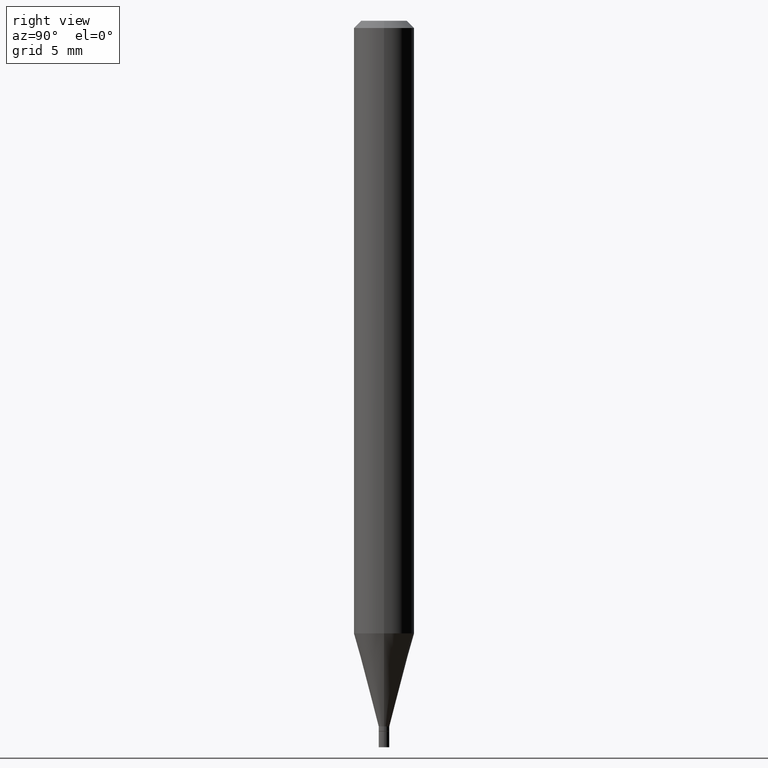
[diagram: clean part render]
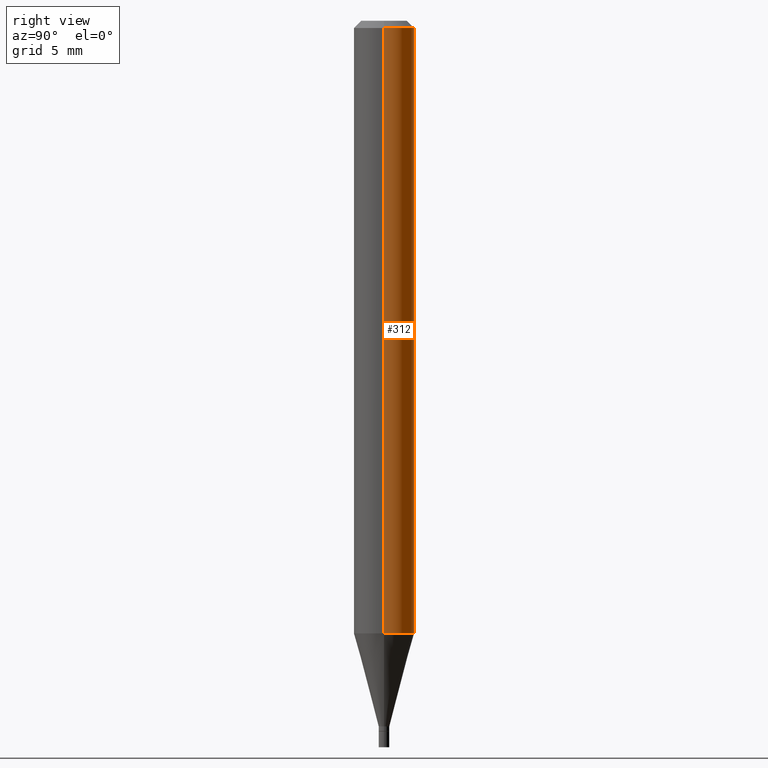
[diagram: same view with one face highlighted and labeled with its STEP entity id]
A machine part, right view. The second image highlights one B-rep face of the part: STEP entity #312.
In plain terms, the highlighted cylindrical surface (edge-blend (fillet) strip) has radius 1.5875 mm, axis along (-0, 0, 1).
Its self-contained STEP definition (entity closure, byte-faithful):
#22 = DIRECTION ( 'NONE',  ( -2.445468806185136877E-29, 3.491481338843145188E-15, 1.000000000000000000 ) ) ;
#24 = ORIENTED_EDGE ( 'NONE', *, *, #83, .F. ) ;
#32 = CARTESIAN_POINT ( 'NONE',  ( 3.093027438211846075E-29, -4.416023444557040885E-15, -1.264799383410203149 ) ) ;
#51 = EDGE_CURVE ( 'NONE', #365, #456, #251, .T. ) ;
#53 = CIRCLE ( 'NONE', #413, 0.06250000000000000000 ) ;
#60 = CARTESIAN_POINT ( 'NONE',  ( 0.06250000000000000000, -4.364351673553916694E-16, 3.047610484872459871E-30 ) ) ;
#68 = VERTEX_POINT ( 'NONE', #316 ) ;
#75 = CYLINDRICAL_SURFACE ( 'NONE', #356, 0.06250000000000000000 ) ;
#78 = VERTEX_POINT ( 'NONE', #460 ) ;
#83 = EDGE_CURVE ( 'NONE', #78, #68, #278, .T. ) ;
#93 = EDGE_CURVE ( 'NONE', #78, #365, #445, .T. ) ;
#100 = CARTESIAN_POINT ( 'NONE',  ( -0.06250000000000000000, 4.440892098500626162E-16, -3.074334431409316114E-30 ) ) ;
#123 = DIRECTION ( 'NONE',  ( 1.000000000000000000, -6.982962677686266711E-15, 4.876176775795935793E-29 ) ) ;
#139 = VECTOR ( 'NONE', #250, 39.37007874015748143 ) ;
#162 = CARTESIAN_POINT ( 'NONE',  ( -0.06250000000000000000, -3.971934234706977480E-15, -1.264799383410203149 ) ) ;
#198 = EDGE_CURVE ( 'NONE', #68, #456, #53, .T. ) ;
#217 = DIRECTION ( 'NONE',  ( 1.000000000000000000, -6.982962677686262766E-15, 0.000000000000000000 ) ) ;
#232 = ORIENTED_EDGE ( 'NONE', *, *, #51, .T. ) ;
#234 = EDGE_LOOP ( 'NONE', ( #369, #232, #292, #24 ) ) ;
#250 = DIRECTION ( 'NONE',  ( -2.445468806185136877E-29, 3.491481338843145188E-15, 1.000000000000000000 ) ) ;
#251 = LINE ( 'NONE', #100, #139 ) ;
#256 = DIRECTION ( 'NONE',  ( -2.445468806185136597E-29, 3.491481338843145583E-15, 1.000000000000000000 ) ) ;
#266 = FACE_OUTER_BOUND ( 'NONE', #234, .T. ) ;
#272 = VECTOR ( 'NONE', #22, 39.37007874015748143 ) ;
#277 = CARTESIAN_POINT ( 'NONE',  ( -0.06250000000000000000, -1.790108622469781169E-15, -0.01499999999999999944 ) ) ;
#278 = LINE ( 'NONE', #60, #272 ) ;
#292 = ORIENTED_EDGE ( 'NONE', *, *, #198, .F. ) ;
#312 = ADVANCED_FACE ( 'NONE', ( #266 ), #75, .T. ) ;
#316 = CARTESIAN_POINT ( 'NONE',  ( 0.06250000000000000000, -4.888073874380388472E-16, -0.01499999999999999944 ) ) ;
#326 = DIRECTION ( 'NONE',  ( -2.445468806185136597E-29, 3.491481338843145583E-15, 1.000000000000000000 ) ) ;
#329 = CARTESIAN_POINT ( 'NONE',  ( 3.668203209277705088E-31, -5.237222008264718399E-17, -0.01499999999999999944 ) ) ;
#331 = DIRECTION ( 'NONE',  ( 1.000000000000000000, -6.982962677686266711E-15, 0.000000000000000000 ) ) ;
#356 = AXIS2_PLACEMENT_3D ( 'NONE', #442, #326, #123 ) ;
#365 = VERTEX_POINT ( 'NONE', #162 ) ;
#369 = ORIENTED_EDGE ( 'NONE', *, *, #93, .T. ) ;
#373 = DIRECTION ( 'NONE',  ( -2.445468806185136597E-29, 3.491481338843145583E-15, 1.000000000000000000 ) ) ;
#413 = AXIS2_PLACEMENT_3D ( 'NONE', #329, #373, #331 ) ;
#431 = AXIS2_PLACEMENT_3D ( 'NONE', #32, #256, #217 ) ;
#442 = CARTESIAN_POINT ( 'NONE',  ( 0.000000000000000000, 0.000000000000000000, 0.000000000000000000 ) ) ;
#445 = CIRCLE ( 'NONE', #431, 0.06250000000000000000 ) ;
#456 = VERTEX_POINT ( 'NONE', #277 ) ;
#460 = CARTESIAN_POINT ( 'NONE',  ( 0.06250000000000000000, -4.852458611912431766E-15, -1.264799383410203149 ) ) ;